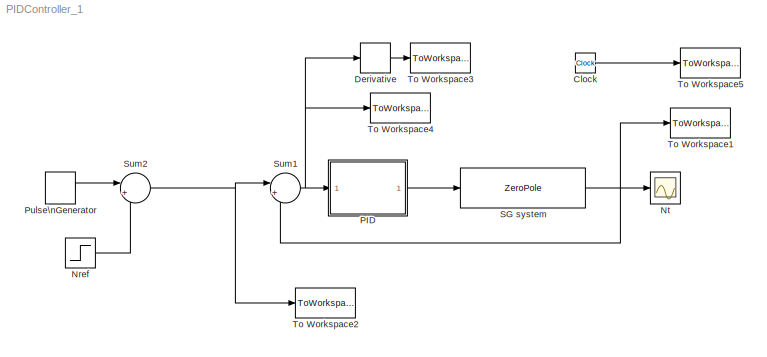
MODEL PIDController_1
KIND model
BLOCK [Clock] Clock
  Decimation = 10
  SID = 1
BLOCK [Derivative] Derivative
  SID = 2
BLOCK [Step] Nref
  SID = 19
  SampleTime = 0
  Time = 0
BLOCK [Scope] Nt
  DataFormat = StructureWithTime
  Floating = off
  NumInputPorts = 1
  Ports = [1]
  SID = 20
  SampleTime = 0
  TimeRange = 3
  YMax = 2
  YMin = 0
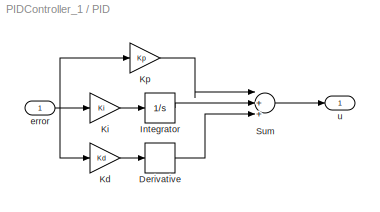
BLOCK [SubSystem] PID
  FunctionWithSeparateData = off
  MaskCallbackString = ||
  MaskDescription = Traditonal PID controller with three parameters:Proportional(Kp),Integral(Ki) and Derivative(Kd)
  MaskDisplay = disp('PID Controller')
  MaskEnableString = on,on,on
  MaskHideContents = off
  MaskIconFrame = on
  MaskIconOpaque = on
  MaskIconRotate = none
  MaskIconUnits = autoscale
  MaskPortRotate = default
  MaskPromptString = Proportional(Kp)|Integral(Ki)|Derivative(Kd)
  MaskStyleString = edit,edit,edit
  MaskToolTipString = on,on,on
  MaskTunableValueString = on,on,on
  MaskValueString = 2.5|1.0|0
  MaskVariables = Kp=@1;Ki=@2;Kd=@3;
  MaskVisibilityString = on,on,on
  MinAlgLoopOccurrences = off
  Opaque = off
  Ports = [1, 1]
  PropExecContextOutsideSubsystem = off
  RTWSystemCode = Auto
  RequestExecContextInheritance = off
  SID = 3
BLOCK [Derivative] PID/Derivative
  SID = 5
BLOCK [Integrator] PID/Integrator
  Ports = [1, 1]
  SID = 6
BLOCK [Gain] PID/Kd
  Gain = Kd
  OutDataTypeStr = Inherit: Inherit via internal rule
  ParamDataTypeStr = Inherit: Inherit via internal rule
  SID = 7
  SaturateOnIntegerOverflow = off
BLOCK [Gain] PID/Ki
  Gain = Ki
  OutDataTypeStr = Inherit: Inherit via internal rule
  ParamDataTypeStr = Inherit: Inherit via internal rule
  SID = 8
  SaturateOnIntegerOverflow = off
BLOCK [Gain] PID/Kp
  Gain = Kp
  OutDataTypeStr = Inherit: Inherit via internal rule
  ParamDataTypeStr = Inherit: Inherit via internal rule
  SID = 9
  SaturateOnIntegerOverflow = off
BLOCK [Sum] PID/Sum
  InputSameDT = off
  Inputs = |+++
  OutDataTypeStr = Inherit: Inherit via internal rule
  Ports = [3, 1]
  SID = 10
  SaturateOnIntegerOverflow = off
BLOCK [Inport] PID/error
  IconDisplay = Port number
  SID = 4
BLOCK [Outport] PID/u
  IconDisplay = Port number
  SID = 11
BLOCK [DiscretePulseGenerator] Pulse\nGenerator
  Amplitude = 0.2
  PhaseDelay = 1
  Ports = [0, 1]
  PulseType = Time based
  SID = 23
BLOCK [ZeroPole] SG system
  Gain = 792
  Poles = [-2.865 -40.235 ]
  SID = 12
  Zeros = []
BLOCK [Sum] Sum1
  IconShape = round
  InputSameDT = off
  Inputs = |+-
  OutDataTypeStr = Inherit: Inherit via internal rule
  Ports = [2, 1]
  SID = 13
  SaturateOnIntegerOverflow = off
BLOCK [Sum] Sum2
  IconShape = round
  InputSameDT = off
  Inputs = |++
  OutDataTypeStr = Inherit: Inherit via internal rule
  Ports = [2, 1]
  SID = 22
  SaturateOnIntegerOverflow = off
BLOCK [ToWorkspace] To Workspace1
  MaxDataPoints = inf
  Ports = [1]
  SID = 14
  SampleTime = 0.001
  SaveFormat = Array
  VariableName = Nt
BLOCK [ToWorkspace] To Workspace2
  MaxDataPoints = inf
  Ports = [1]
  SID = 15
  SampleTime = 0.001
  SaveFormat = Array
  VariableName = Nref
BLOCK [ToWorkspace] To Workspace3
  MaxDataPoints = inf
  Ports = [1]
  SID = 16
  SampleTime = 0.001
  SaveFormat = Array
  VariableName = ec
BLOCK [ToWorkspace] To Workspace4
  MaxDataPoints = inf
  Ports = [1]
  SID = 17
  SampleTime = 0.001
  SaveFormat = Array
  VariableName = e
BLOCK [ToWorkspace] To Workspace5
  MaxDataPoints = inf
  Ports = [1]
  SID = 18
  SampleTime = 0.001
  SaveFormat = Array
  VariableName = t
LINE Clock:1 -> To Workspace5:1
LINE Derivative:1 -> To Workspace3:1
LINE Nref:1 -> Sum2:2
LINE PID/Derivative:1 -> PID/Sum:3
LINE PID/Integrator:1 -> PID/Sum:2
LINE PID/Kd:1 -> PID/Derivative:1
LINE PID/Ki:1 -> PID/Integrator:1
LINE PID/Kp:1 -> PID/Sum:1
LINE PID/Sum:1 -> PID/u:1
NET PID/error:1 -> PID/Kd:1, PID/Ki:1, PID/Kp:1
LINE PID:1 -> SG system:1
LINE Pulse\nGenerator:1 -> Sum2:1
NET SG system:1 -> Nt:1, Sum1:2, To Workspace1:1
NET Sum1:1 -> Derivative:1, PID:1, To Workspace4:1
NET Sum2:1 -> Sum1:1, To Workspace2:1
note: NET lines group one-source signal fan-out (src -> all destinations, sorted); 1:1 wires keep LINE
